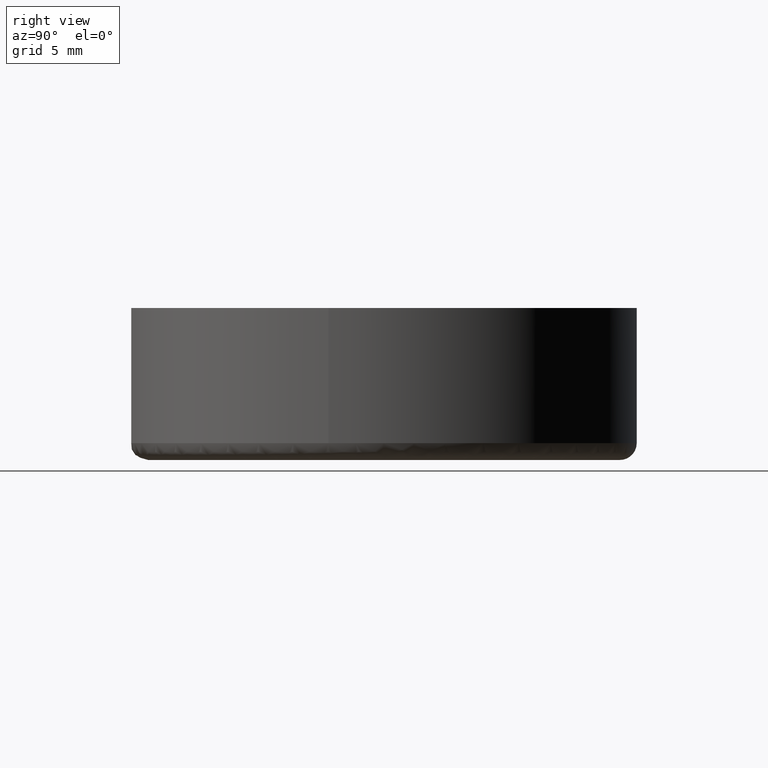
[diagram: clean part render]
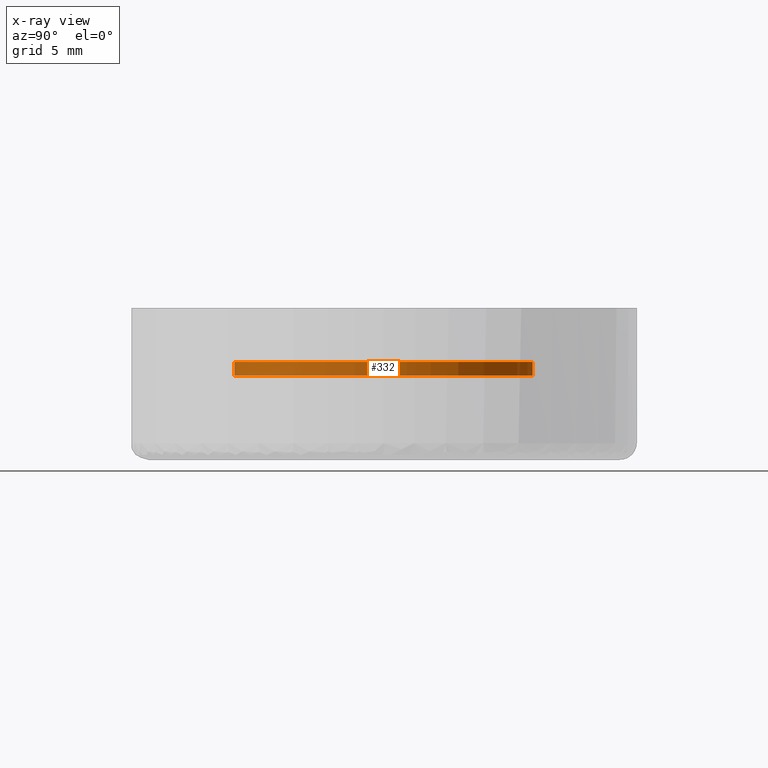
[diagram: x-ray — body ghosted, one internal face saturated and labeled with its STEP entity id]
A machine part, right view, then the same camera in x-ray: the body is ghosted and one INTERNAL B-rep face — a face not visible from any outside direction — is saturated and labeled: STEP entity #332.
In plain terms, the highlighted face is a freeform B-spline surface patch.
Its self-contained STEP definition (entity closure, byte-faithful):
#230=CARTESIAN_POINT('',(-1.044602976712312,8.788134308318448,5.819999999999801));
#231=CARTESIAN_POINT('',(-0.793090348446102,8.818030396720161,5.819999999999800));
#232=CARTESIAN_POINT('',(-0.540279574883484,8.833492966033521,5.819999999999800));
#233=CARTESIAN_POINT('',(8.293213391150037,9.373772540917006,5.819999999999800));
#234=CARTESIAN_POINT('',(8.833492966033521,0.540279574883484,5.819999999999800));
#235=CARTESIAN_POINT('',(9.373772540917006,-8.293213391150037,5.819999999999800));
#236=CARTESIAN_POINT('',(0.540279574883484,-8.833492966033521,5.819999999999800));
#237=CARTESIAN_POINT('',(-1.044602976712312,8.788134308318448,4.979499999999799));
#238=CARTESIAN_POINT('',(-0.793090348446102,8.818030396720161,4.979499999999799));
#239=CARTESIAN_POINT('',(-0.540279574883484,8.833492966033521,4.979499999999799));
#240=CARTESIAN_POINT('',(8.293213391150037,9.373772540917006,4.979499999999800));
#241=CARTESIAN_POINT('',(8.833492966033521,0.540279574883484,4.979499999999799));
#242=CARTESIAN_POINT('',(9.373772540917006,-8.293213391150037,4.979499999999800));
#243=CARTESIAN_POINT('',(0.540279574883484,-8.833492966033521,4.979499999999799));
#251=(BOUNDED_SURFACE()B_SPLINE_SURFACE(2,1,((#230,#237),(#231,#238),(#232,#239),(#233,#240),(#234,#241),(#235,#242),(#236,#243)),.UNSPECIFIED.,.F.,.F.,.U.)B_SPLINE_SURFACE_WITH_KNOTS((3,2,2,3),(2,2),(0.0,0.586526404320303,15.249686512327870,29.912846620335429),(0.0,1.0),.UNSPECIFIED.)GEOMETRIC_REPRESENTATION_ITEM()RATIONAL_B_SPLINE_SURFACE(((0.977505800795127,0.977505800795127),(0.988284271247462,0.988284271247462),(1.0,1.0),(0.707106781186548,0.707106781186548),(1.0,1.0),(0.707106781186548,0.707106781186548),(1.0,1.0)))REPRESENTATION_ITEM('')SURFACE());
#252=CARTESIAN_POINT('',(-1.044592699997766,8.788135529849564,4.999999999999963));
#253=VERTEX_POINT('',#252);
#254=CARTESIAN_POINT('',(8.850000000000000,0.0,4.999999999999800));
#255=VERTEX_POINT('',#254);
#256=CARTESIAN_POINT('',(-1.044592699997766,8.788135529849564,4.999999999999963));
#257=CARTESIAN_POINT('',(-0.524128266240975,8.850000000000000,4.999999999999800));
#258=CARTESIAN_POINT('',(0.0,8.850000000000000,4.999999999999800));
#259=CARTESIAN_POINT('',(8.850000000000000,8.850000000000000,4.999999999999800));
#260=CARTESIAN_POINT('',(8.850000000000000,0.0,4.999999999999800));
#268=(BOUNDED_CURVE()B_SPLINE_CURVE(2,(#256,#257,#258,#259,#260),.UNSPECIFIED.,.F.,.U.)B_SPLINE_CURVE_WITH_KNOTS((3,2,3),(0.229562671145563,0.250000000000000,0.500000000000000),.UNSPECIFIED.)CURVE()GEOMETRIC_REPRESENTATION_ITEM()RATIONAL_B_SPLINE_CURVE((0.956027141550981,0.976056179871500,1.0,0.707106781186547,1.0))REPRESENTATION_ITEM(''));
#269=EDGE_CURVE('',#253,#255,#268,.T.);
#270=ORIENTED_EDGE('',*,*,#269,.F.);
#271=CARTESIAN_POINT('',(-1.044592826775624,8.788135514780393,5.799999999999798));
#272=VERTEX_POINT('',#271);
#273=CARTESIAN_POINT('',(-1.044592826775624,8.788135514780393,5.799999999999798));
#274=CARTESIAN_POINT('',(-1.044592699997766,8.788135529849564,4.999999999999963));
#275=QUASI_UNIFORM_CURVE('',1,(#273,#274),.UNSPECIFIED.,.F.,.U.);
#276=EDGE_CURVE('',#272,#253,#275,.T.);
#277=ORIENTED_EDGE('',*,*,#276,.F.);
#278=CARTESIAN_POINT('',(8.850000000000000,0.0,5.799999999999799));
#279=VERTEX_POINT('',#278);
#280=CARTESIAN_POINT('',(-1.044592826775624,8.788135514780393,5.799999999999798));
#281=CARTESIAN_POINT('',(-0.524128330300023,8.849999999999998,5.799999999999800));
#282=CARTESIAN_POINT('',(0.0,8.850000000000000,5.799999999999799));
#283=CARTESIAN_POINT('',(8.850000000000000,8.850000000000000,5.799999999999799));
#284=CARTESIAN_POINT('',(8.850000000000000,0.0,5.799999999999799));
#292=(BOUNDED_CURVE()B_SPLINE_CURVE(2,(#280,#281,#282,#283,#284),.UNSPECIFIED.,.F.,.U.)B_SPLINE_CURVE_WITH_KNOTS((3,2,3),(0.229562668707517,0.250000000000000,0.500000000000000),.UNSPECIFIED.)CURVE()GEOMETRIC_REPRESENTATION_ITEM()RATIONAL_B_SPLINE_CURVE((0.956027136772302,0.976056177015151,1.0,0.707106781186547,1.0))REPRESENTATION_ITEM(''));
#293=EDGE_CURVE('',#272,#279,#292,.T.);
#294=ORIENTED_EDGE('',*,*,#293,.T.);
#295=CARTESIAN_POINT('',(0.540269000319505,-8.833493612788857,5.799999999999799));
#296=VERTEX_POINT('',#295);
#297=CARTESIAN_POINT('',(8.850000000000000,0.0,5.799999999999799));
#298=CARTESIAN_POINT('',(8.850000000000000,-8.325258676889257,5.799999999999799));
#299=CARTESIAN_POINT('',(0.540269000319505,-8.833493612788857,5.799999999999799));
#307=(BOUNDED_CURVE()B_SPLINE_CURVE(2,(#297,#298,#299),.UNSPECIFIED.,.F.,.U.)B_SPLINE_CURVE_WITH_KNOTS((3,3),(0.500000000000000,0.739333168797558),.UNSPECIFIED.)CURVE()GEOMETRIC_REPRESENTATION_ITEM()RATIONAL_B_SPLINE_CURVE((1.0,0.719603751288239,0.976072484361550))REPRESENTATION_ITEM(''));
#308=EDGE_CURVE('',#279,#296,#307,.T.);
#309=ORIENTED_EDGE('',*,*,#308,.T.);
#310=CARTESIAN_POINT('',(0.540268868188659,-8.833493620870005,4.999999999999591));
#311=VERTEX_POINT('',#310);
#312=CARTESIAN_POINT('',(0.540269000319505,-8.833493612788857,5.799999999999799));
#313=CARTESIAN_POINT('',(0.540268868188659,-8.833493620870005,4.999999999999591));
#314=QUASI_UNIFORM_CURVE('',1,(#312,#313),.UNSPECIFIED.,.F.,.U.);
#315=EDGE_CURVE('',#296,#311,#314,.T.);
#316=ORIENTED_EDGE('',*,*,#315,.T.);
#317=CARTESIAN_POINT('',(8.850000000000000,0.0,4.999999999999800));
#318=CARTESIAN_POINT('',(8.849999999999998,-8.325258801650644,4.999999999999800));
#319=CARTESIAN_POINT('',(0.540268868188659,-8.833493620870005,4.999999999999591));
#327=(BOUNDED_CURVE()B_SPLINE_CURVE(2,(#317,#318,#319),.UNSPECIFIED.,.F.,.U.)B_SPLINE_CURVE_WITH_KNOTS((3,3),(0.500000000000000,0.739333171378503),.UNSPECIFIED.)CURVE()GEOMETRIC_REPRESENTATION_ITEM()RATIONAL_B_SPLINE_CURVE((1.0,0.719603748264474,0.976072489893016))REPRESENTATION_ITEM(''));
#328=EDGE_CURVE('',#255,#311,#327,.T.);
#329=ORIENTED_EDGE('',*,*,#328,.F.);
#330=EDGE_LOOP('',(#270,#277,#294,#309,#316,#329));
#331=FACE_OUTER_BOUND('',#330,.T.);
#332=ADVANCED_FACE('',(#331),#251,.T.);